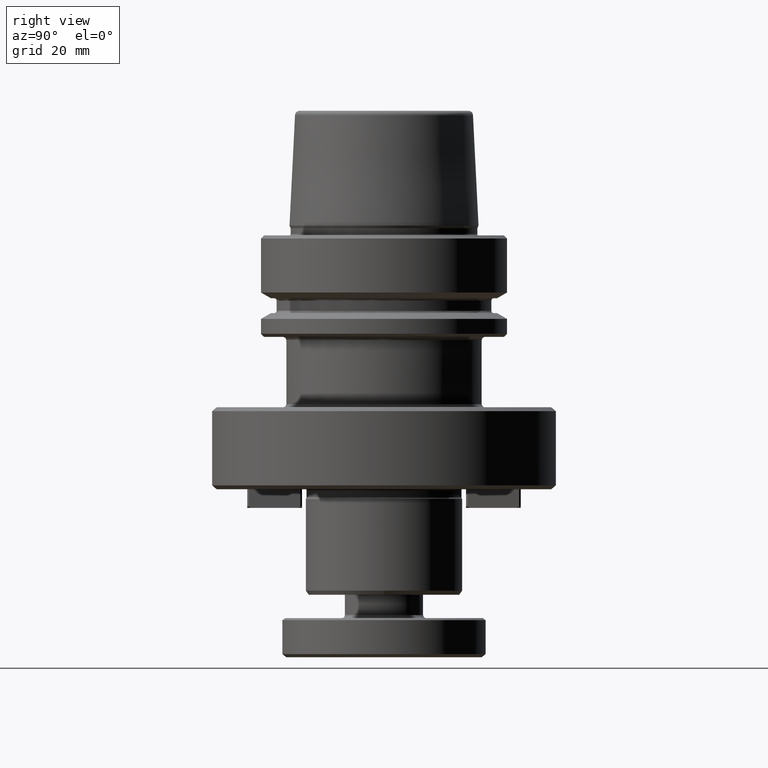
[diagram: clean part render]
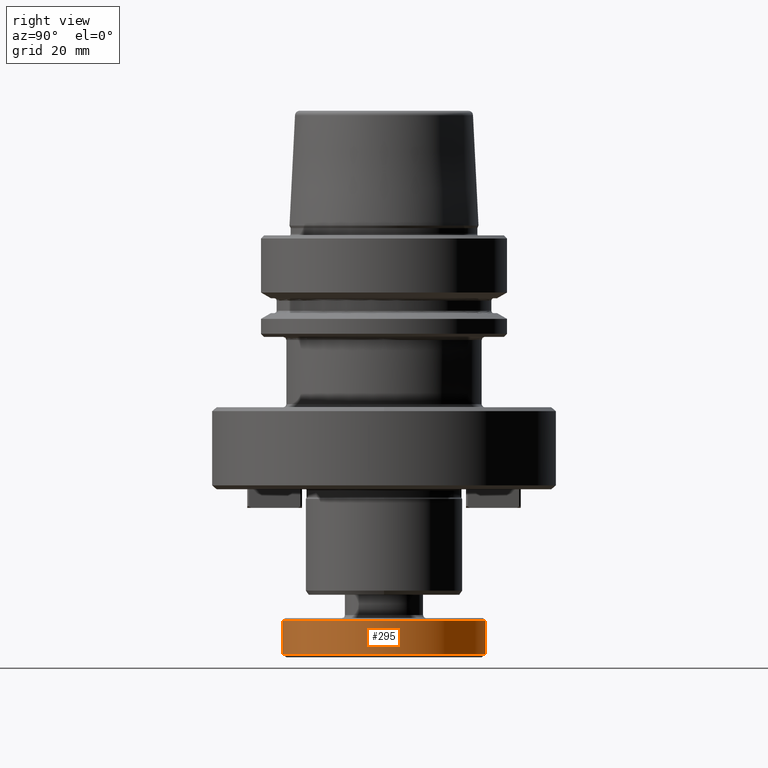
[diagram: same view with one face highlighted and labeled with its STEP entity id]
A machine part, right view. The second image highlights one B-rep face of the part: STEP entity #295.
In plain terms, the highlighted cylindrical surface (partial cylindrical patch) has radius 26 mm, axis along (0, -0, 1).
Its self-contained STEP definition (entity closure, byte-faithful):
#3 = ORIENTED_EDGE ( 'NONE', *, *, #3525, .T. ) ;
#6 = DIRECTION ( 'NONE',  ( 0.0000000000000000000, 1.000000000000000000, 0.0000000000000000000 ) ) ;
#45 = CIRCLE ( 'NONE', #2708, 26.00000000000000400 ) ;
#119 = DIRECTION ( 'NONE',  ( 0.0000000000000000000, -1.671302151435124600E-017, 1.000000000000000000 ) ) ;
#234 = DIRECTION ( 'NONE',  ( -0.0000000000000000000, -1.671302151435096800E-017, 1.000000000000000000 ) ) ;
#295 = ADVANCED_FACE ( 'NONE', ( #1770 ), #2970, .T. ) ;
#399 = CIRCLE ( 'NONE', #2966, 26.00000000000000400 ) ;
#434 = EDGE_LOOP ( 'NONE', ( #927, #2004, #2447, #2614, #545, #3 ) ) ;
#443 = EDGE_CURVE ( 'NONE', #743, #1147, #480, .T. ) ;
#480 = LINE ( 'NONE', #1579, #2591 ) ;
#545 = ORIENTED_EDGE ( 'NONE', *, *, #1486, .F. ) ;
#558 = EDGE_CURVE ( 'NONE', #2267, #1147, #1125, .T. ) ;
#594 = CARTESIAN_POINT ( 'NONE',  ( 0.0000000000000000000, -1.036760122869859700E-015, -107.2000000000000000 ) ) ;
#612 = DIRECTION ( 'NONE',  ( 0.0000000000000000000, -1.671302151435124600E-017, 1.000000000000000000 ) ) ;
#676 = VERTEX_POINT ( 'NONE', #1671 ) ;
#743 = VERTEX_POINT ( 'NONE', #2485 ) ;
#861 = DIRECTION ( 'NONE',  ( 0.0000000000000000000, -1.000000000000000000, 0.0000000000000000000 ) ) ;
#902 = CARTESIAN_POINT ( 'NONE',  ( 0.0000000000000000000, -26.00000000000000400, -98.50000000000001400 ) ) ;
#927 = ORIENTED_EDGE ( 'NONE', *, *, #1808, .T. ) ;
#992 = VERTEX_POINT ( 'NONE', #902 ) ;
#1125 = CIRCLE ( 'NONE', #2897, 26.00000000000000400 ) ;
#1147 = VERTEX_POINT ( 'NONE', #2640 ) ;
#1201 = AXIS2_PLACEMENT_3D ( 'NONE', #2047, #119, #3436 ) ;
#1305 = DIRECTION ( 'NONE',  ( 0.0000000000000000000, -1.671302151435124600E-017, 1.000000000000000000 ) ) ;
#1346 = DIRECTION ( 'NONE',  ( 0.0000000000000000000, -1.671302151435124600E-017, 1.000000000000000000 ) ) ;
#1486 = EDGE_CURVE ( 'NONE', #2473, #992, #1740, .T. ) ;
#1579 = CARTESIAN_POINT ( 'NONE',  ( 3.184081677783118600E-015, 26.00000000000000000, -14.76692465335438500 ) ) ;
#1665 = DIRECTION ( 'NONE',  ( -0.0000000000000000000, -1.671302151435096800E-017, 1.000000000000000000 ) ) ;
#1671 = CARTESIAN_POINT ( 'NONE',  ( 25.99999999999998900, -1.734723475976807100E-015, -107.2000000000000000 ) ) ;
#1740 = LINE ( 'NONE', #2721, #2382 ) ;
#1770 = FACE_OUTER_BOUND ( 'NONE', #434, .T. ) ;
#1808 = EDGE_CURVE ( 'NONE', #676, #743, #399, .T. ) ;
#1885 = CARTESIAN_POINT ( 'NONE',  ( 0.0000000000000000000, -1.182163410044715800E-015, -98.50000000000001400 ) ) ;
#2004 = ORIENTED_EDGE ( 'NONE', *, *, #443, .T. ) ;
#2047 = CARTESIAN_POINT ( 'NONE',  ( 0.0000000000000000000, -2.581596099775997700E-015, -14.76692465335438500 ) ) ;
#2162 = DIRECTION ( 'NONE',  ( -8.881784197001252300E-016, 1.000000000000000000, 0.0000000000000000000 ) ) ;
#2255 = CARTESIAN_POINT ( 'NONE',  ( 0.0000000000000000000, -1.036760122869859700E-015, -107.2000000000000000 ) ) ;
#2267 = VERTEX_POINT ( 'NONE', #3263 ) ;
#2382 = VECTOR ( 'NONE', #1346, 1000.000000000000000 ) ;
#2447 = ORIENTED_EDGE ( 'NONE', *, *, #558, .F. ) ;
#2473 = VERTEX_POINT ( 'NONE', #2647 ) ;
#2485 = CARTESIAN_POINT ( 'NONE',  ( 3.184081677783118600E-015, 26.00000000000000400, -107.2000000000000000 ) ) ;
#2509 = DIRECTION ( 'NONE',  ( 0.0000000000000000000, -1.671302151435124600E-017, 1.000000000000000000 ) ) ;
#2530 = DIRECTION ( 'NONE',  ( 0.0000000000000000000, -1.000000000000000000, 0.0000000000000000000 ) ) ;
#2591 = VECTOR ( 'NONE', #1305, 1000.000000000000000 ) ;
#2614 = ORIENTED_EDGE ( 'NONE', *, *, #2667, .F. ) ;
#2640 = CARTESIAN_POINT ( 'NONE',  ( 3.184081677783118600E-015, 26.00000000000000400, -98.50000000000001400 ) ) ;
#2647 = CARTESIAN_POINT ( 'NONE',  ( 0.0000000000000000000, -26.00000000000000400, -107.2000000000000000 ) ) ;
#2667 = EDGE_CURVE ( 'NONE', #992, #2267, #45, .T. ) ;
#2708 = AXIS2_PLACEMENT_3D ( 'NONE', #3308, #1665, #6 ) ;
#2721 = CARTESIAN_POINT ( 'NONE',  ( 0.0000000000000000000, -26.00000000000000700, -14.76692465335438500 ) ) ;
#2872 = CIRCLE ( 'NONE', #3229, 26.00000000000000400 ) ;
#2897 = AXIS2_PLACEMENT_3D ( 'NONE', #1885, #234, #2162 ) ;
#2966 = AXIS2_PLACEMENT_3D ( 'NONE', #594, #2509, #861 ) ;
#2970 = CYLINDRICAL_SURFACE ( 'NONE', #1201, 26.00000000000000400 ) ;
#3229 = AXIS2_PLACEMENT_3D ( 'NONE', #2255, #612, #2530 ) ;
#3263 = CARTESIAN_POINT ( 'NONE',  ( 26.00000000000001100, 1.449358201806312500E-015, -98.50000000000001400 ) ) ;
#3308 = CARTESIAN_POINT ( 'NONE',  ( 0.0000000000000000000, -1.182163410044715800E-015, -98.50000000000001400 ) ) ;
#3436 = DIRECTION ( 'NONE',  ( 0.0000000000000000000, -1.000000000000000000, 0.0000000000000000000 ) ) ;
#3525 = EDGE_CURVE ( 'NONE', #2473, #676, #2872, .T. ) ;